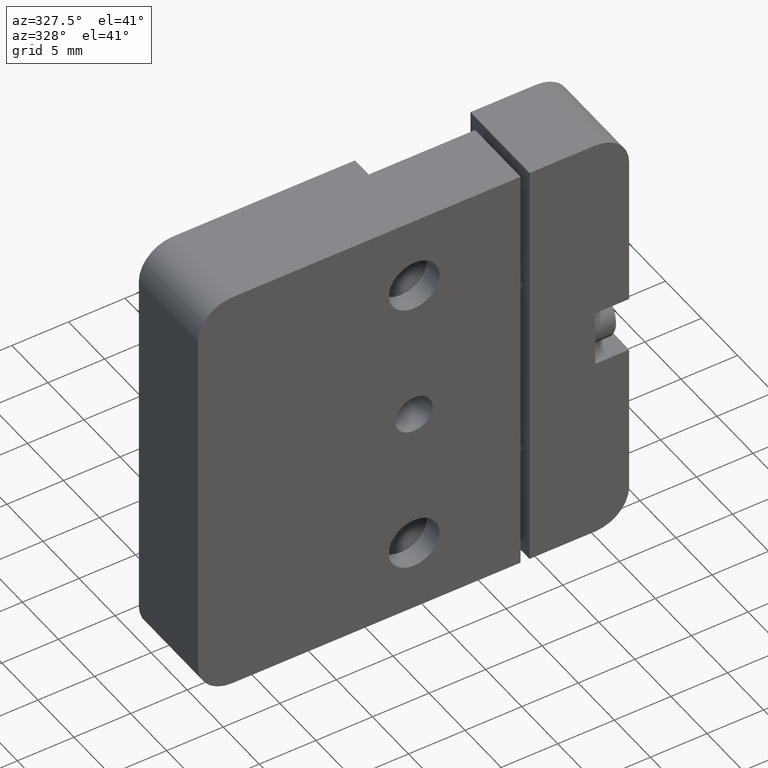
[diagram: clean part render]
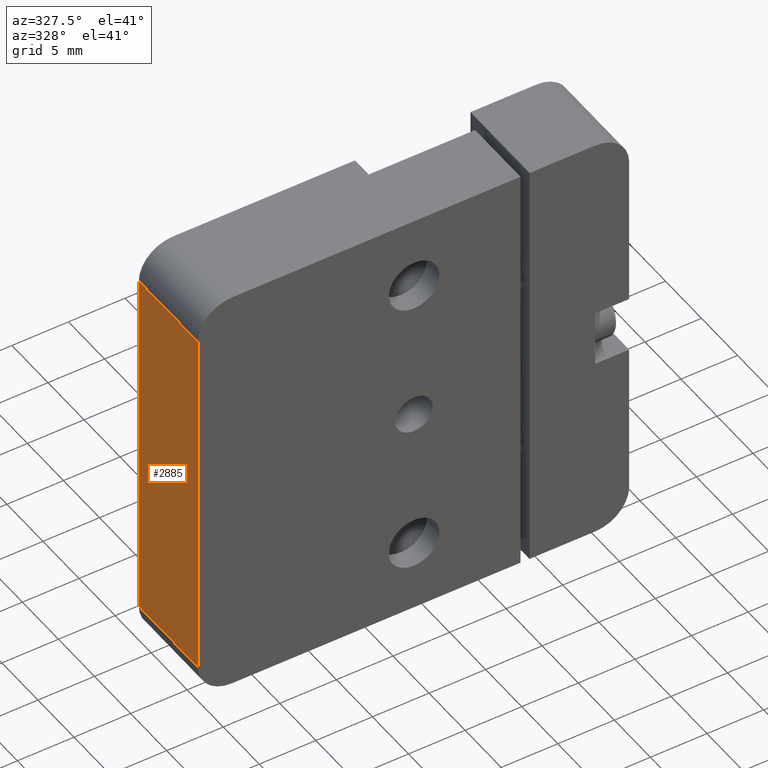
[diagram: same view with one face highlighted and labeled with its STEP entity id]
A machine part, auxiliary view. The second image highlights one B-rep face of the part: STEP entity #2885.
In plain terms, the highlighted planar face has unit normal (1, 0, -0).
Its self-contained STEP definition (entity closure, byte-faithful):
#30 = LINE ( 'NONE', #3535, #967 ) ;
#192 = EDGE_CURVE ( 'NONE', #1186, #4441, #3858, .T. ) ;
#967 = VECTOR ( 'NONE', #5104, 1000.000000000000000 ) ;
#1020 = EDGE_CURVE ( 'NONE', #1186, #1279, #30, .T. ) ;
#1186 = VERTEX_POINT ( 'NONE', #1704 ) ;
#1279 = VERTEX_POINT ( 'NONE', #5882 ) ;
#1302 = CARTESIAN_POINT ( 'NONE',  ( -19.05000000000000426, 4.127500000000000391, -16.05000000000000071 ) ) ;
#1589 = ORIENTED_EDGE ( 'NONE', *, *, #192, .T. ) ;
#1662 = VECTOR ( 'NONE', #4023, 1000.000000000000000 ) ;
#1704 = CARTESIAN_POINT ( 'NONE',  ( -19.04999999999999716, -4.127500000000000391, 16.04999999999999716 ) ) ;
#1956 = PLANE ( 'NONE',  #5059 ) ;
#2047 = EDGE_CURVE ( 'NONE', #4966, #1279, #2899, .T. ) ;
#2351 = CARTESIAN_POINT ( 'NONE',  ( -19.05000000000000426, 4.127500000000000391, -15.87499999999997868 ) ) ;
#2458 = CARTESIAN_POINT ( 'NONE',  ( -19.05000000000000071, 4.072500000000000675, -15.87499999999999645 ) ) ;
#2556 = CARTESIAN_POINT ( 'NONE',  ( -19.05000000000000071, 4.127500000000000391, 16.05000000000000071 ) ) ;
#2885 = ADVANCED_FACE ( 'NONE', ( #5166 ), #1956, .F. ) ;
#2899 = LINE ( 'NONE', #1302, #4561 ) ;
#3535 = CARTESIAN_POINT ( 'NONE',  ( -19.05000000000000071, -4.127500000000000391, -15.87499999999999645 ) ) ;
#3577 = CARTESIAN_POINT ( 'NONE',  ( -19.05000000000000071, 4.072500000000000675, -16.05000000000000071 ) ) ;
#3858 = LINE ( 'NONE', #2556, #1662 ) ;
#3871 = DIRECTION ( 'NONE',  ( 0.000000000000000000, -1.000000000000000000, 0.000000000000000000 ) ) ;
#3940 = DIRECTION ( 'NONE',  ( -1.092739197465706520E-16, 0.000000000000000000, -1.000000000000000000 ) ) ;
#3957 = ORIENTED_EDGE ( 'NONE', *, *, #2047, .T. ) ;
#4023 = DIRECTION ( 'NONE',  ( -0.000000000000000000, 1.000000000000000000, -0.000000000000000000 ) ) ;
#4296 = EDGE_CURVE ( 'NONE', #4441, #4966, #6088, .T. ) ;
#4441 = VERTEX_POINT ( 'NONE', #6407 ) ;
#4561 = VECTOR ( 'NONE', #3871, 1000.000000000000000 ) ;
#4631 = ORIENTED_EDGE ( 'NONE', *, *, #1020, .F. ) ;
#4966 = VERTEX_POINT ( 'NONE', #3577 ) ;
#5059 = AXIS2_PLACEMENT_3D ( 'NONE', #2351, #5332, #3940 ) ;
#5104 = DIRECTION ( 'NONE',  ( -1.092739197465706520E-16, 0.000000000000000000, -1.000000000000000000 ) ) ;
#5120 = EDGE_LOOP ( 'NONE', ( #5304, #3957, #4631, #1589 ) ) ;
#5166 = FACE_OUTER_BOUND ( 'NONE', #5120, .T. ) ;
#5304 = ORIENTED_EDGE ( 'NONE', *, *, #4296, .T. ) ;
#5332 = DIRECTION ( 'NONE',  ( 1.000000000000000000, 0.000000000000000000, -1.092739197465706520E-16 ) ) ;
#5882 = CARTESIAN_POINT ( 'NONE',  ( -19.05000000000000071, -4.127500000000000391, -16.05000000000000071 ) ) ;
#6051 = DIRECTION ( 'NONE',  ( -1.092739197465706520E-16, 0.000000000000000000, -1.000000000000000000 ) ) ;
#6088 = LINE ( 'NONE', #2458, #6333 ) ;
#6333 = VECTOR ( 'NONE', #6051, 1000.000000000000000 ) ;
#6407 = CARTESIAN_POINT ( 'NONE',  ( -19.04999999999999716, 4.072500000000000675, 16.04999999999999716 ) ) ;